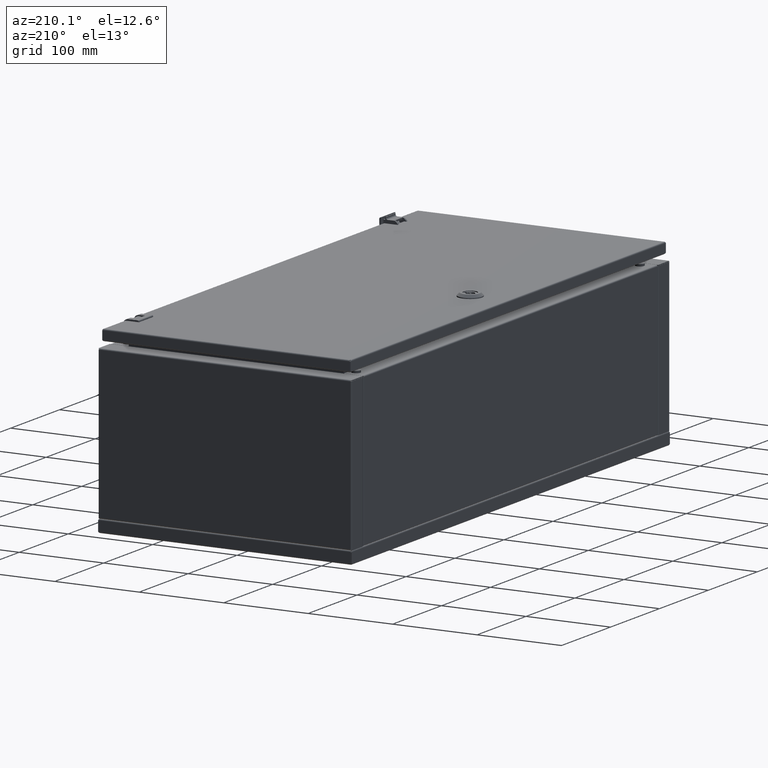
[diagram: clean part render]
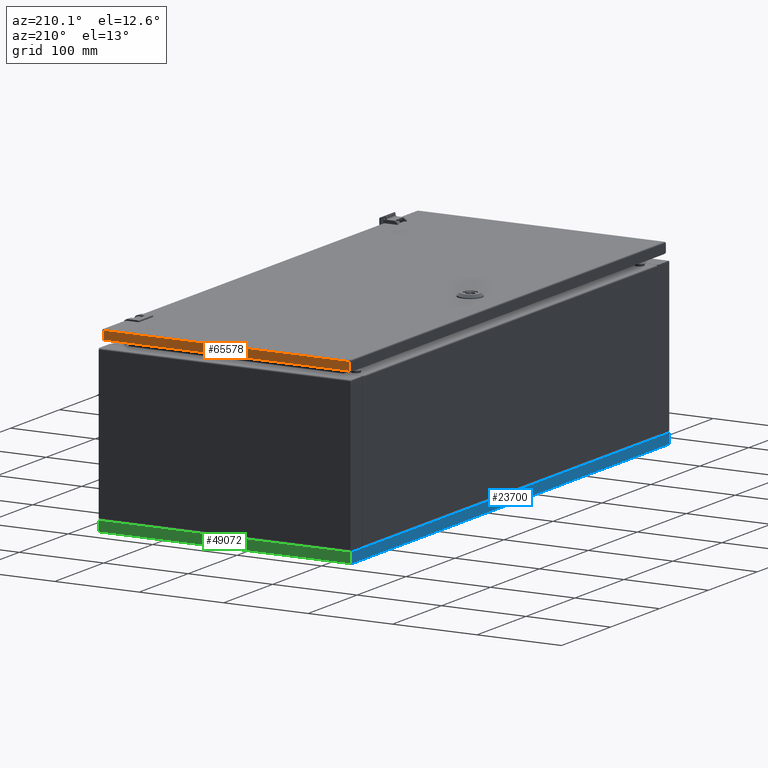
[diagram: same view with three faces highlighted in distinct colors, each labeled with its STEP entity id]
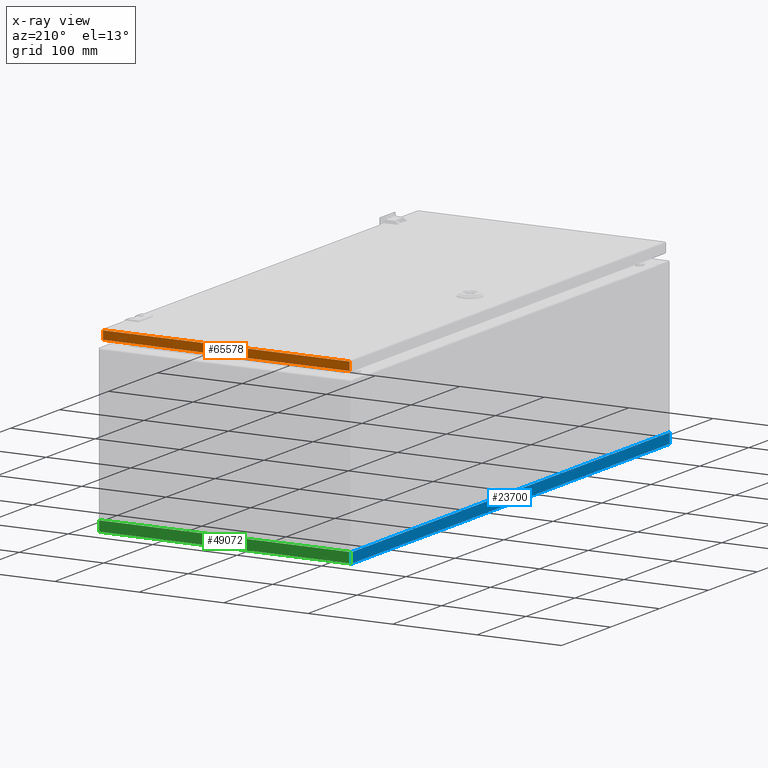
[diagram: x-ray of the same camera — body ghosted, the three highlighted faces saturated]
A machine part, auxiliary view with three faces highlighted in distinct colors.
The next image is the same camera in x-ray (body ghosted, the three faces saturated) — at least one of them is partly hidden behind the body in this view.
Their STEP definitions:

[orange] entity #65578 — the highlighted planar face has unit normal (-0, -1, -0).
#2722 = DIRECTION ( 'NONE',  ( -1.761398527557120100E-014, 5.140759709673300700E-015, -1.000000000000000000 ) ) ;
#2863 = DIRECTION ( 'NONE',  ( 1.206287015244544100E-014, -7.707055194662080700E-015, 1.000000000000000000 ) ) ;
#7208 = VERTEX_POINT ( 'NONE', #16524 ) ;
#8758 = ORIENTED_EDGE ( 'NONE', *, *, #39713, .T. ) ;
#10065 = PLANE ( 'NONE',  #50706 ) ;
#12674 = CARTESIAN_POINT ( 'NONE',  ( 145.6464466093194100, 321.8999999999879800, 201.5999999999999900 ) ) ;
#12704 = CARTESIAN_POINT ( 'NONE',  ( -147.0000000000870000, 321.8999999999899700, 211.6000000000045100 ) ) ;
#13548 = CARTESIAN_POINT ( 'NONE',  ( -145.9000000000870000, 321.8999999999899700, 201.6000000000044800 ) ) ;
#15520 = LINE ( 'NONE', #38090, #19441 ) ;
#16127 = VERTEX_POINT ( 'NONE', #20921 ) ;
#16524 = CARTESIAN_POINT ( 'NONE',  ( -145.9000000000870000, 321.8999999999904800, 211.6000000000045100 ) ) ;
#17610 = FACE_OUTER_BOUND ( 'NONE', #45050, .T. ) ;
#19441 = VECTOR ( 'NONE', #50651, 1000.000000000000000 ) ;
#19759 = VECTOR ( 'NONE', #2722, 1000.000000000000000 ) ;
#20921 = CARTESIAN_POINT ( 'NONE',  ( 145.8999999999129800, 321.8999999999879800, 201.5999999999999900 ) ) ;
#29055 = EDGE_CURVE ( 'NONE', #39398, #7208, #53260, .T. ) ;
#38090 = CARTESIAN_POINT ( 'NONE',  ( 145.8999999999129800, 321.8999999999879800, 211.6000000000000200 ) ) ;
#39398 = VERTEX_POINT ( 'NONE', #71827 ) ;
#39713 = EDGE_CURVE ( 'NONE', #39398, #16127, #15520, .T. ) ;
#40515 = VERTEX_POINT ( 'NONE', #13548 ) ;
#41742 = LINE ( 'NONE', #12674, #63250 ) ;
#45050 = EDGE_LOOP ( 'NONE', ( #58249, #49148, #75035, #8758 ) ) ;
#46790 = CARTESIAN_POINT ( 'NONE',  ( -8.710803323254750100E-011, 321.8999999999889500, 212.1000000000040000 ) ) ;
#49148 = ORIENTED_EDGE ( 'NONE', *, *, #63574, .F. ) ;
#49344 = VECTOR ( 'NONE', #50028, 1000.000000000000000 ) ;
#50028 = DIRECTION ( 'NONE',  ( -1.000000000000000000, 7.895888217185719900E-015, 1.206287015244550100E-014 ) ) ;
#50651 = DIRECTION ( 'NONE',  ( -6.680075733054380500E-015, 7.959415991136050600E-015, -1.000000000000000000 ) ) ;
#50706 = AXIS2_PLACEMENT_3D ( 'NONE', #46790, #66789, #2863 ) ;
#53260 = LINE ( 'NONE', #12704, #49344 ) ;
#58249 = ORIENTED_EDGE ( 'NONE', *, *, #79256, .T. ) ;
#62598 = DIRECTION ( 'NONE',  ( -1.000000000000000000, 7.895888217185719900E-015, 1.206287015244550100E-014 ) ) ;
#63250 = VECTOR ( 'NONE', #62598, 1000.000000000000000 ) ;
#63574 = EDGE_CURVE ( 'NONE', #7208, #40515, #68880, .T. ) ;
#65578 = ADVANCED_FACE ( 'NONE', ( #17610 ), #10065, .F. ) ;
#66789 = DIRECTION ( 'NONE',  ( -7.895888217185820900E-015, -1.000000000000000000, -7.707055194661986000E-015 ) ) ;
#68880 = LINE ( 'NONE', #71573, #19759 ) ;
#71573 = CARTESIAN_POINT ( 'NONE',  ( -145.9000000000870000, 321.8999999999899700, 211.6000000000045100 ) ) ;
#71827 = CARTESIAN_POINT ( 'NONE',  ( 145.8999999999129800, 321.8999999999879800, 211.6000000000000200 ) ) ;
#75035 = ORIENTED_EDGE ( 'NONE', *, *, #29055, .F. ) ;
#79256 = EDGE_CURVE ( 'NONE', #16127, #40515, #41742, .T. ) ;

[blue] entity #23700 — the highlighted planar face has unit normal (1, -0, 0).
#2999 = LINE ( 'NONE', #74294, #14804 ) ;
#4974 = CARTESIAN_POINT ( 'NONE',  ( -150.0000000000000000, -325.0000000000000000, 0.4999999999996400700 ) ) ;
#5164 = VECTOR ( 'NONE', #45834, 1000.000000000000000 ) ;
#5442 = CARTESIAN_POINT ( 'NONE',  ( -150.0000000000000000, -323.2928932188135600, 12.49999999999968000 ) ) ;
#6282 = DIRECTION ( 'NONE',  ( 8.540177112501188600E-017, 1.000000000000000000, 4.270088556250584400E-017 ) ) ;
#11315 = VECTOR ( 'NONE', #77065, 1000.000000000000000 ) ;
#14191 = DIRECTION ( 'NONE',  ( 1.000000000000000000, -8.540177112501209600E-017, 3.965082230804130600E-015 ) ) ;
#14804 = VECTOR ( 'NONE', #6282, 1000.000000000000000 ) ;
#15200 = LINE ( 'NONE', #20573, #11315 ) ;
#19119 = EDGE_CURVE ( 'NONE', #52115, #46278, #75863, .T. ) ;
#20103 = EDGE_CURVE ( 'NONE', #38264, #37216, #2999, .T. ) ;
#20573 = CARTESIAN_POINT ( 'NONE',  ( -150.0000000000000000, 325.0000000000000000, 0.4999999999996400700 ) ) ;
#23700 = ADVANCED_FACE ( 'NONE', ( #36388 ), #33422, .F. ) ;
#26040 = CARTESIAN_POINT ( 'NONE',  ( -150.0000000000000000, -5.775605589682219500E-014, -9.159339953157539400E-013 ) ) ;
#32692 = CARTESIAN_POINT ( 'NONE',  ( -150.0000000000000000, -325.0000000000000000, 0.4999999999996400700 ) ) ;
#33355 = ORIENTED_EDGE ( 'NONE', *, *, #81131, .T. ) ;
#33422 = PLANE ( 'NONE',  #35340 ) ;
#33446 = EDGE_CURVE ( 'NONE', #37216, #46278, #15200, .T. ) ;
#35340 = AXIS2_PLACEMENT_3D ( 'NONE', #26040, #14191, #39242 ) ;
#35509 = ORIENTED_EDGE ( 'NONE', *, *, #19119, .T. ) ;
#36388 = FACE_OUTER_BOUND ( 'NONE', #51477, .T. ) ;
#37216 = VERTEX_POINT ( 'NONE', #70601 ) ;
#37330 = DIRECTION ( 'NONE',  ( 4.930380657631319400E-032, 1.000000000000000000, -1.859170711069494900E-031 ) ) ;
#38264 = VERTEX_POINT ( 'NONE', #4974 ) ;
#39242 = DIRECTION ( 'NONE',  ( 3.965082230804130600E-015, -4.734264008281368500E-031, -1.000000000000000000 ) ) ;
#45834 = DIRECTION ( 'NONE',  ( -4.625929269271440400E-015, -4.625929269271440400E-015, 1.000000000000000000 ) ) ;
#46278 = VERTEX_POINT ( 'NONE', #57208 ) ;
#51477 = EDGE_LOOP ( 'NONE', ( #35509, #81060, #54395, #33355 ) ) ;
#52115 = VERTEX_POINT ( 'NONE', #66377 ) ;
#54395 = ORIENTED_EDGE ( 'NONE', *, *, #20103, .F. ) ;
#57208 = CARTESIAN_POINT ( 'NONE',  ( -150.0000000000000000, 325.0000000000000000, 12.49999999999968000 ) ) ;
#59240 = VECTOR ( 'NONE', #37330, 1000.000000000000000 ) ;
#66377 = CARTESIAN_POINT ( 'NONE',  ( -150.0000000000000000, -325.0000000000000000, 12.49999999999962000 ) ) ;
#68977 = LINE ( 'NONE', #32692, #5164 ) ;
#70601 = CARTESIAN_POINT ( 'NONE',  ( -150.0000000000000000, 325.0000000000000000, 0.4999999999996670400 ) ) ;
#74294 = CARTESIAN_POINT ( 'NONE',  ( -150.0000000000000000, 325.0000000000000000, 0.4999999999996670400 ) ) ;
#75863 = LINE ( 'NONE', #5442, #59240 ) ;
#77065 = DIRECTION ( 'NONE',  ( -4.625929269271480600E-015, 4.625929269271480600E-015, 1.000000000000000000 ) ) ;
#81060 = ORIENTED_EDGE ( 'NONE', *, *, #33446, .F. ) ;
#81131 = EDGE_CURVE ( 'NONE', #38264, #52115, #68977, .T. ) ;

[green] entity #49072 — the highlighted planar face has unit normal (0, -1, 0).
#1265 = PLANE ( 'NONE',  #28630 ) ;
#2260 = CARTESIAN_POINT ( 'NONE',  ( 148.9000000000000100, 325.0000000000000000, 12.49999999999976000 ) ) ;
#2544 = CARTESIAN_POINT ( 'NONE',  ( -148.9000000000000100, 325.0000000000000000, 12.49999999999970000 ) ) ;
#3952 = CARTESIAN_POINT ( 'NONE',  ( 150.0000000000000000, 325.0000000000000000, 0.4999999999997779600 ) ) ;
#4707 = EDGE_CURVE ( 'NONE', #69061, #34040, #81255, .T. ) ;
#12684 = CARTESIAN_POINT ( 'NONE',  ( -148.9000000000000100, 325.0000000000000000, 0.4999999999997230000 ) ) ;
#14774 = ORIENTED_EDGE ( 'NONE', *, *, #4707, .T. ) ;
#21141 = ORIENTED_EDGE ( 'NONE', *, *, #49891, .F. ) ;
#28630 = AXIS2_PLACEMENT_3D ( 'NONE', #69586, #33134, #76428 ) ;
#32741 = LINE ( 'NONE', #3952, #76846 ) ;
#33134 = DIRECTION ( 'NONE',  ( 1.850371707708589900E-016, -1.000000000000000000, 3.965082230804130600E-015 ) ) ;
#34040 = VERTEX_POINT ( 'NONE', #2544 ) ;
#34499 = CARTESIAN_POINT ( 'NONE',  ( -148.2928932188129900, 325.0000000000000000, 12.49999999999971900 ) ) ;
#34988 = DIRECTION ( 'NONE',  ( 1.000000000000000000, 1.850371707708599700E-016, -1.183291357831517900E-030 ) ) ;
#40077 = CARTESIAN_POINT ( 'NONE',  ( 148.9000000000000100, 325.0000000000000000, 0.4999999999995010700 ) ) ;
#40503 = VECTOR ( 'NONE', #52485, 1000.000000000000000 ) ;
#44495 = ORIENTED_EDGE ( 'NONE', *, *, #80654, .F. ) ;
#49072 = ADVANCED_FACE ( 'NONE', ( #75784 ), #1265, .F. ) ;
#49801 = VECTOR ( 'NONE', #66826, 1000.000000000000000 ) ;
#49891 = EDGE_CURVE ( 'NONE', #73541, #68409, #70858, .T. ) ;
#51492 = EDGE_LOOP ( 'NONE', ( #54005, #21141, #44495, #14774 ) ) ;
#52438 = CARTESIAN_POINT ( 'NONE',  ( -148.9000000000000100, 325.0000000000000000, 0.4999999999997230000 ) ) ;
#52485 = DIRECTION ( 'NONE',  ( -1.708035422500394800E-016, 1.134447930428370100E-015, 1.000000000000000000 ) ) ;
#52687 = EDGE_CURVE ( 'NONE', #34040, #68409, #69430, .T. ) ;
#54005 = ORIENTED_EDGE ( 'NONE', *, *, #52687, .T. ) ;
#66826 = DIRECTION ( 'NONE',  ( 1.000000000000000000, 4.930380657631319400E-031, 0.0000000000000000000 ) ) ;
#68409 = VERTEX_POINT ( 'NONE', #2260 ) ;
#69061 = VERTEX_POINT ( 'NONE', #52438 ) ;
#69154 = DIRECTION ( 'NONE',  ( -4.488791594479895900E-015, 3.490113450626610400E-015, 1.000000000000000000 ) ) ;
#69430 = LINE ( 'NONE', #34499, #49801 ) ;
#69586 = CARTESIAN_POINT ( 'NONE',  ( 3.608224830031760300E-013, 325.0000000000000000, -1.526556658859590000E-012 ) ) ;
#70858 = LINE ( 'NONE', #71390, #40503 ) ;
#71390 = CARTESIAN_POINT ( 'NONE',  ( 148.9000000000000100, 325.0000000000000000, 0.4999999999998060400 ) ) ;
#73541 = VERTEX_POINT ( 'NONE', #40077 ) ;
#75784 = FACE_OUTER_BOUND ( 'NONE', #51492, .T. ) ;
#76428 = DIRECTION ( 'NONE',  ( 0.0000000000000000000, -3.965082230804130600E-015, -1.000000000000000000 ) ) ;
#76846 = VECTOR ( 'NONE', #34988, 1000.000000000000000 ) ;
#77306 = VECTOR ( 'NONE', #69154, 1000.000000000000000 ) ;
#80654 = EDGE_CURVE ( 'NONE', #69061, #73541, #32741, .T. ) ;
#81255 = LINE ( 'NONE', #12684, #77306 ) ;